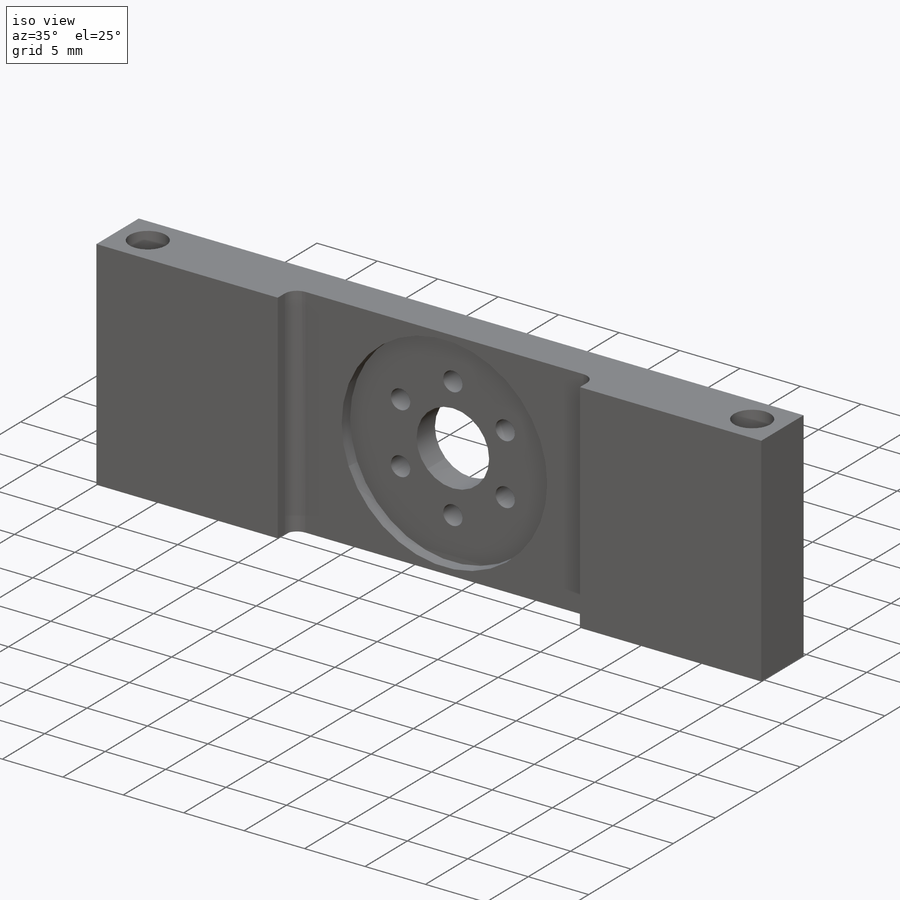
[diagram: iso view]
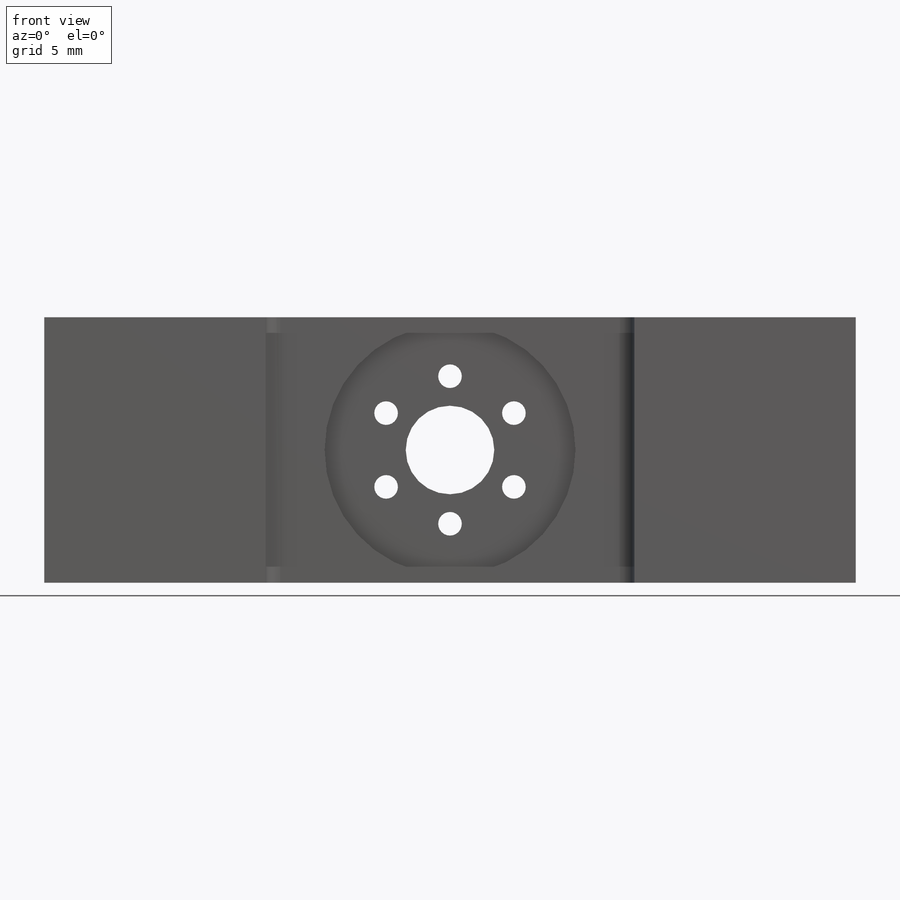
[diagram: front view]
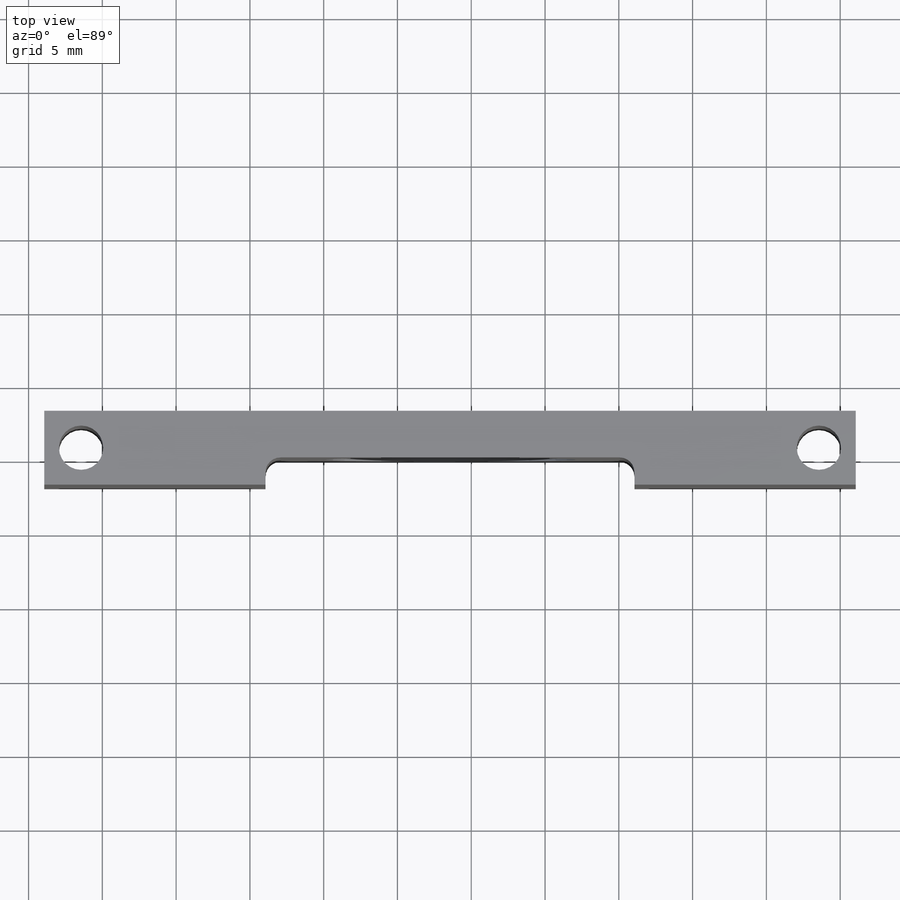
[diagram: top view]
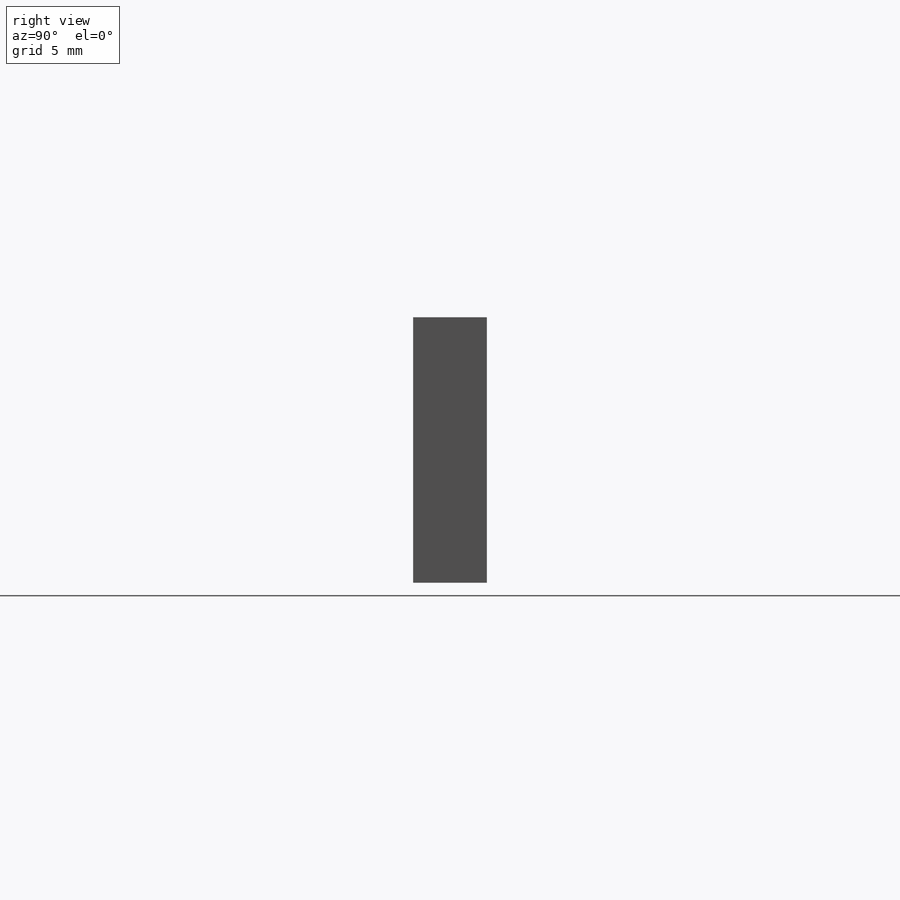
[diagram: right view]
SOLIDWORKS PART (.sldprt)
format: sldprt  version: not decoded by parser v0  size: 233,984 bytes
history: native  units: mm
features: sketch x5, cut_extrude x4, material x1, extrude x1, fillet x1 (+12 scaffold rows collapsed)
feature tree (24):
  scaffold x12  (default folders/planes/origin — collapsed)
  material  "Material <not specified>"
  sketch  "Sketch2"  dims[D1=55.0mm D2=5.0mm D3=15.0mm D4=15.0mm]
  extrude  "Boss-Extrude1"  Depth=18mm
  sketch  "Sketch9"  dims[D1=17.0mm]
  cut_extrude  "Cut-Extrude6"  Depth=1mm
  sketch  "Sketch10"  dims[D1=6.0mm]
  cut_extrude  "Cut-Extrude7"  [1 undecoded]
  sketch  "Sketch11"  dims[c1.D1=10.0mm c1.D2=1.6mm c2.D1=10.0mm c2.D2=1.6mm c2.D3=6.0]
  cut_extrude  "Cut-Extrude8"  [1 undecoded]
  fillet  "Fillet1"  Radius=1mm
  sketch  "Sketch13"  dims[c1.D1=3.0mm c1.D4=3.0mm c1.D2=2.5mm c1.D3=2.5mm c1.D5=50.0mm c1.D6=50.0mm c2.D5=2.5mm c2.D6=~2.96026mm c3.D5=2.5mm]
  cut_extrude  "Cut-Extrude10"  [1 undecoded]
decode coverage: 8 of 11 modeling features carry decoded parameters
note: ~ marks probable driven/reference dimensions
note: 3 parameter values undecoded
summary: no parameter record found for 3 features
note: suppression state not decoded; provenance and decode notes live in map.json
